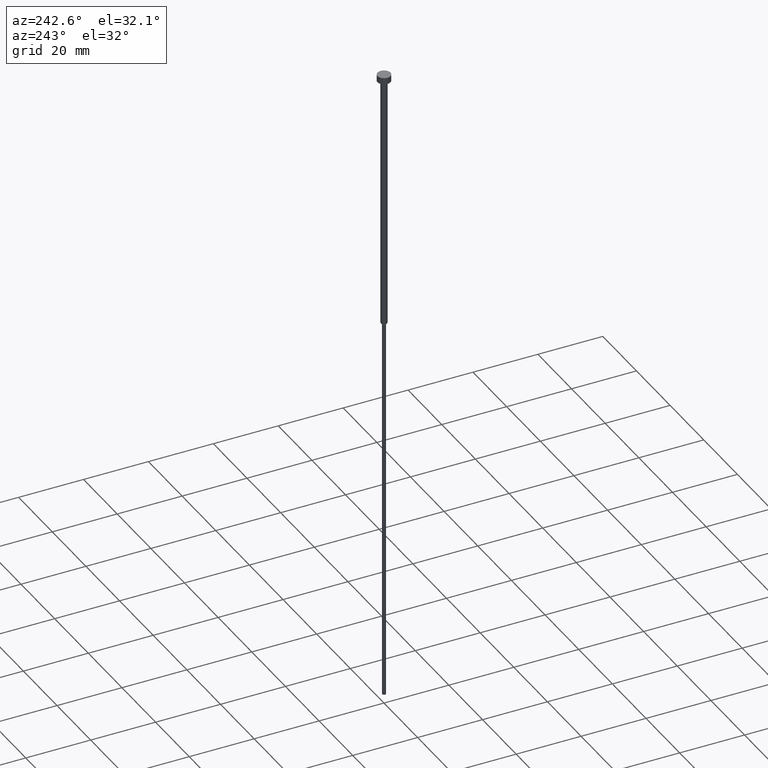
[diagram: clean part render]
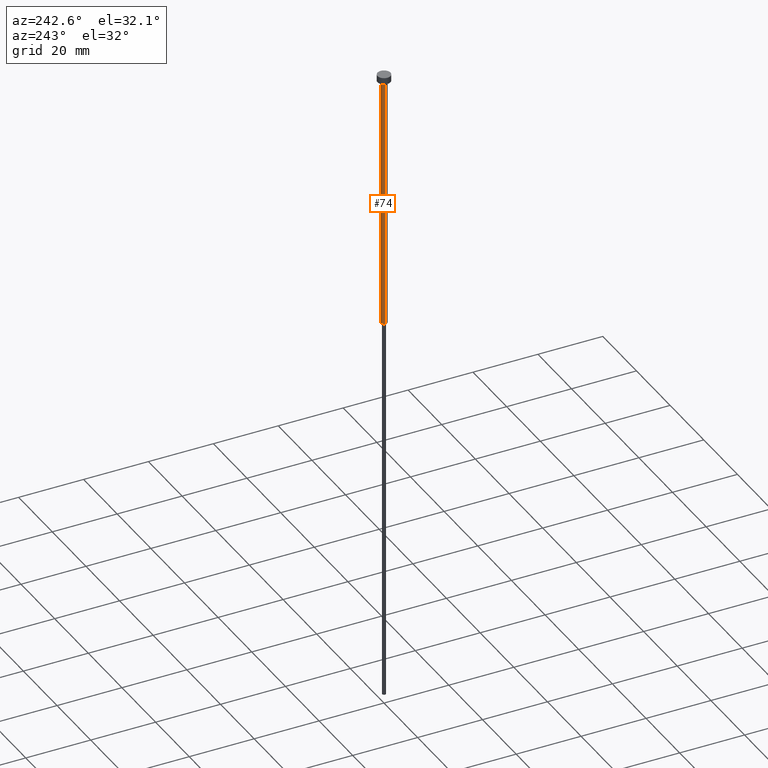
[diagram: same view with one face highlighted and labeled with its STEP entity id]
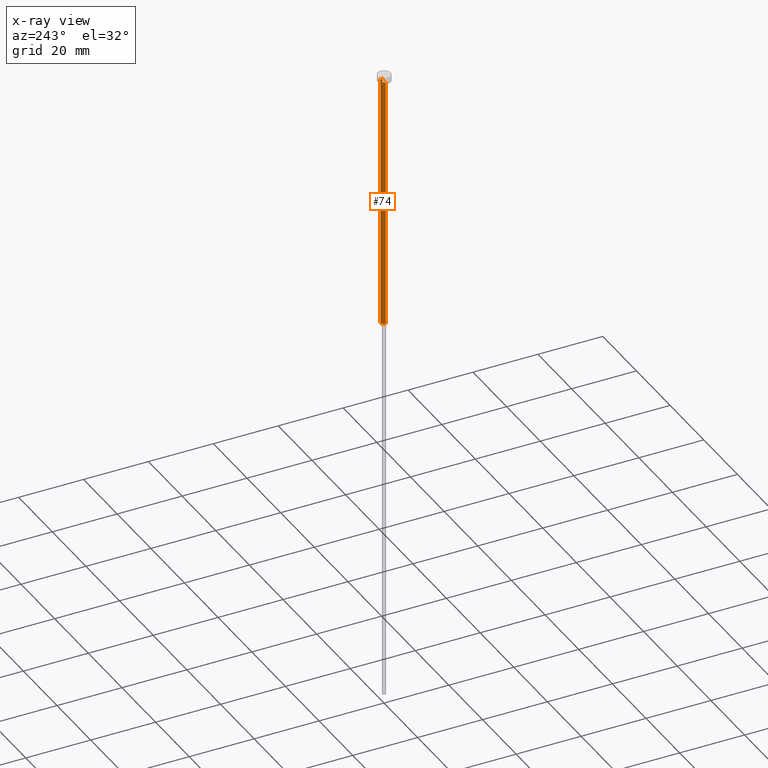
[diagram: x-ray of the same camera — body ghosted, the highlighted face saturated]
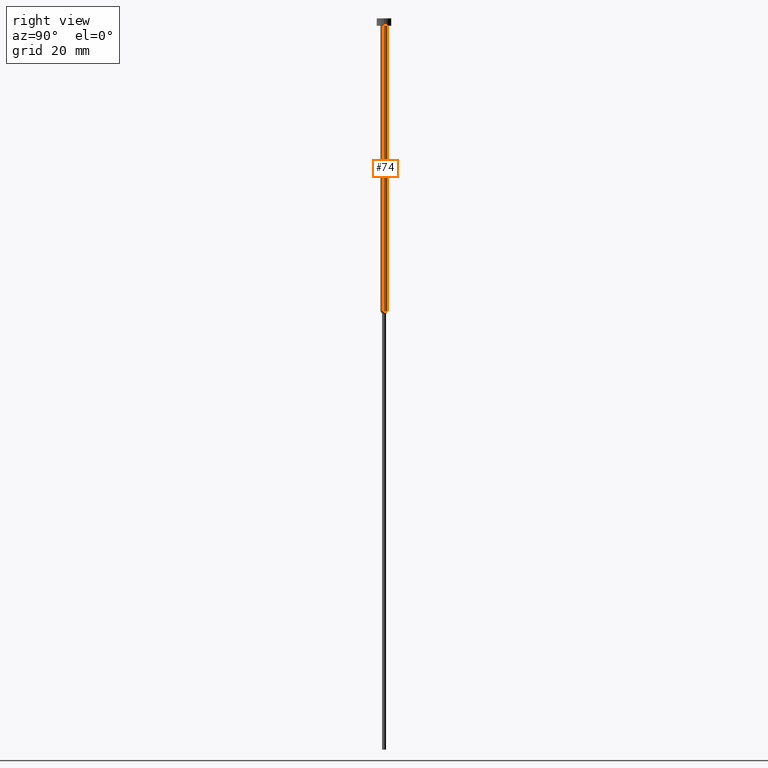
[diagram: same view with one face highlighted and labeled with its STEP entity id]
A machine part, auxiliary view. The second image highlights one B-rep face of the part: STEP entity #74.
The next image is the same camera in x-ray: the body ghosted, the highlighted face saturated — about 0% of this face is hidden behind the body in this view.
A second angle (right view) of the same face is appended — the face is thin or edge-on in the first view.
In plain terms, the highlighted cylindrical surface (edge-blend (fillet) strip) has radius 1 mm, axis along (-0, -0, 1).
Its self-contained STEP definition (entity closure, byte-faithful):
#25 = VERTEX_POINT ( 'NONE', #122 ) ;
#34 = EDGE_CURVE ( 'NONE', #64, #25, #159, .T. ) ;
#41 = CARTESIAN_POINT ( 'NONE',  ( 0.000000000000000000, 0.000000000000000000, 0.000000000000000000 ) ) ;
#46 = DIRECTION ( 'NONE',  ( -0.000000000000000000, -0.000000000000000000, 1.000000000000000000 ) ) ;
#64 = VERTEX_POINT ( 'NONE', #107 ) ;
#66 = DIRECTION ( 'NONE',  ( -0.000000000000000000, -0.000000000000000000, 1.000000000000000000 ) ) ;
#67 = CARTESIAN_POINT ( 'NONE',  ( 1.000000000000003109, 0.000000000000000000, -80.00000000000000000 ) ) ;
#69 = DIRECTION ( 'NONE',  ( -0.000000000000000000, -0.000000000000000000, 1.000000000000000000 ) ) ;
#70 = CARTESIAN_POINT ( 'NONE',  ( 0.000000000000000000, 0.000000000000000000, -80.00000000000000000 ) ) ;
#71 = DIRECTION ( 'NONE',  ( 1.000000000000000000, 0.000000000000000000, 0.000000000000000000 ) ) ;
#73 = DIRECTION ( 'NONE',  ( 1.000000000000000000, 0.000000000000000000, 0.000000000000000000 ) ) ;
#74 = ADVANCED_FACE ( 'NONE', ( #313 ), #127, .T. ) ;
#75 = VERTEX_POINT ( 'NONE', #67 ) ;
#89 = EDGE_CURVE ( 'NONE', #75, #191, #123, .T. ) ;
#94 = ORIENTED_EDGE ( 'NONE', *, *, #297, .T. ) ;
#107 = CARTESIAN_POINT ( 'NONE',  ( 1.000000000000003553, 0.000000000000000000, -2.000000000000000444 ) ) ;
#122 = CARTESIAN_POINT ( 'NONE',  ( -1.000000000000003553, 1.224646799147357398E-16, -2.000000000000000444 ) ) ;
#123 = CIRCLE ( 'NONE', #252, 1.000000000000003109 ) ;
#127 = CYLINDRICAL_SURFACE ( 'NONE', #201, 1.000000000000003331 ) ;
#156 = DIRECTION ( 'NONE',  ( -0.000000000000000000, -0.000000000000000000, 1.000000000000000000 ) ) ;
#159 = CIRCLE ( 'NONE', #192, 1.000000000000003553 ) ;
#161 = DIRECTION ( 'NONE',  ( -0.000000000000000000, -0.000000000000000000, 1.000000000000000000 ) ) ;
#179 = ORIENTED_EDGE ( 'NONE', *, *, #34, .F. ) ;
#191 = VERTEX_POINT ( 'NONE', #301 ) ;
#192 = AXIS2_PLACEMENT_3D ( 'NONE', #335, #69, #71 ) ;
#201 = AXIS2_PLACEMENT_3D ( 'NONE', #41, #156, #260 ) ;
#209 = LINE ( 'NONE', #310, #262 ) ;
#242 = EDGE_CURVE ( 'NONE', #75, #64, #285, .T. ) ;
#249 = ORIENTED_EDGE ( 'NONE', *, *, #242, .F. ) ;
#252 = AXIS2_PLACEMENT_3D ( 'NONE', #70, #161, #73 ) ;
#260 = DIRECTION ( 'NONE',  ( 1.000000000000000000, 0.000000000000000000, 0.000000000000000000 ) ) ;
#262 = VECTOR ( 'NONE', #66, 1000.000000000000000 ) ;
#264 = CARTESIAN_POINT ( 'NONE',  ( 1.000000000000003331, 0.000000000000000000, 0.000000000000000000 ) ) ;
#285 = LINE ( 'NONE', #264, #323 ) ;
#297 = EDGE_CURVE ( 'NONE', #191, #25, #209, .T. ) ;
#301 = CARTESIAN_POINT ( 'NONE',  ( -1.000000000000003109, 1.224646799147356905E-16, -80.00000000000000000 ) ) ;
#305 = EDGE_LOOP ( 'NONE', ( #355, #94, #179, #249 ) ) ;
#310 = CARTESIAN_POINT ( 'NONE',  ( -1.000000000000003331, 1.224646799147357151E-16, 0.000000000000000000 ) ) ;
#313 = FACE_OUTER_BOUND ( 'NONE', #305, .T. ) ;
#323 = VECTOR ( 'NONE', #46, 1000.000000000000000 ) ;
#335 = CARTESIAN_POINT ( 'NONE',  ( 0.000000000000000000, 0.000000000000000000, -2.000000000000000444 ) ) ;
#355 = ORIENTED_EDGE ( 'NONE', *, *, #89, .T. ) ;